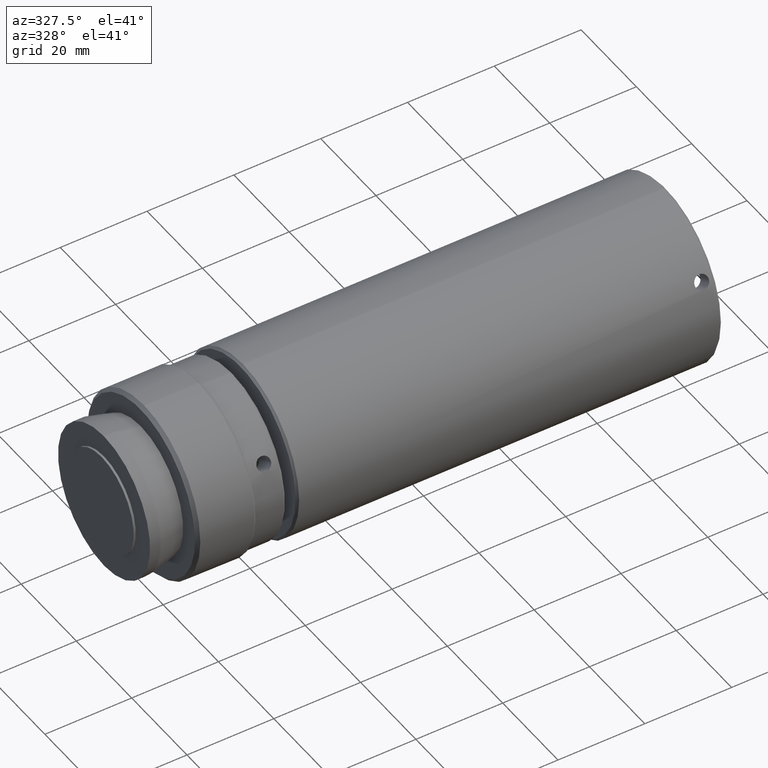
[diagram: clean part render]
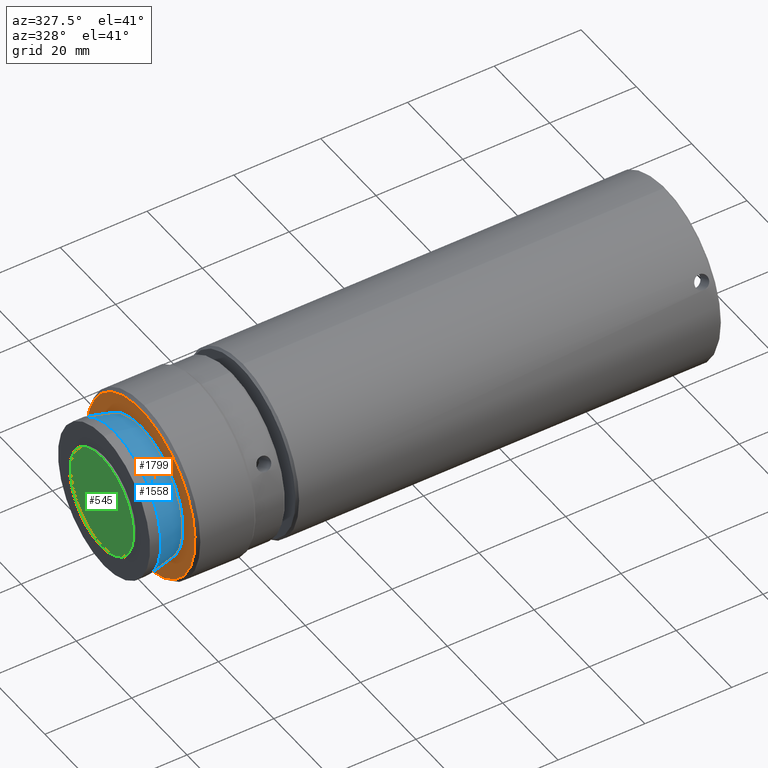
[diagram: same view with three faces highlighted in distinct colors, each labeled with its STEP entity id]
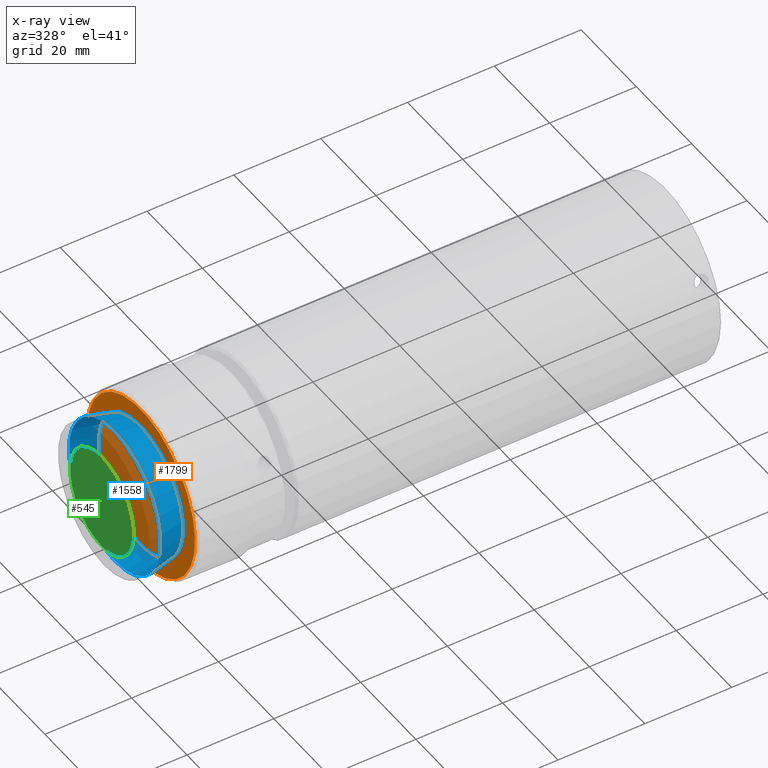
[diagram: x-ray of the same camera — body ghosted, the three highlighted faces saturated]
A machine part, auxiliary view with three faces highlighted in distinct colors.
The next image is the same camera in x-ray (body ghosted, the three faces saturated) — at least one of them is partly hidden behind the body in this view.
Their STEP definitions:

[orange] entity #1799 — the highlighted planar face has unit normal (1, -0, 0).
#136 = VERTEX_POINT ( 'NONE', #820 ) ;
#144 = CARTESIAN_POINT ( 'NONE',  ( 1.439495422680916903, 50.30531704458957165, 106.9958967609388765 ) ) ;
#335 = DIRECTION ( 'NONE',  ( 0.000000000000000000, 0.000000000000000000, -1.000000000000000000 ) ) ;
#370 = AXIS2_PLACEMENT_3D ( 'NONE', #458, #1308, #1472 ) ;
#458 = CARTESIAN_POINT ( 'NONE',  ( 1.439495422680916903, 0.000000000000000000, 0.000000000000000000 ) ) ;
#820 = CARTESIAN_POINT ( 'NONE',  ( 1.439495422680916903, 50.30531704458957165, 87.44589676093886510 ) ) ;
#910 = CIRCLE ( 'NONE', #2178, 19.55000000000001137 ) ;
#978 = FACE_OUTER_BOUND ( 'NONE', #1165, .T. ) ;
#1018 = EDGE_CURVE ( 'NONE', #136, #136, #910, .T. ) ;
#1165 = EDGE_LOOP ( 'NONE', ( #1605 ) ) ;
#1308 = DIRECTION ( 'NONE',  ( 1.000000000000000000, -0.000000000000000000, 0.000000000000000000 ) ) ;
#1472 = DIRECTION ( 'NONE',  ( 0.000000000000000000, 0.000000000000000000, -1.000000000000000000 ) ) ;
#1492 = DIRECTION ( 'NONE',  ( 1.000000000000000000, 0.000000000000000000, 0.000000000000000000 ) ) ;
#1605 = ORIENTED_EDGE ( 'NONE', *, *, #1018, .F. ) ;
#1799 = ADVANCED_FACE ( 'NONE', ( #978 ), #1878, .F. ) ;
#1878 = PLANE ( 'NONE',  #370 ) ;
#2178 = AXIS2_PLACEMENT_3D ( 'NONE', #144, #1492, #335 ) ;

[blue] entity #1558 — the highlighted conical surface has half-angle 13 deg.
#128 = CARTESIAN_POINT ( 'NONE',  ( 1.439495422680917791, 50.30531704458957165, 122.2606876141854571 ) ) ;
#351 = FACE_BOUND ( 'NONE', #899, .T. ) ;
#444 = VERTEX_POINT ( 'NONE', #1131 ) ;
#606 = CIRCLE ( 'NONE', #829, 16.64999999999999858 ) ;
#701 = DIRECTION ( 'NONE',  ( 2.604689903869079782E-16, 0.000000000000000000, 1.000000000000000000 ) ) ;
#710 = FACE_OUTER_BOUND ( 'NONE', #1288, .T. ) ;
#751 = CARTESIAN_POINT ( 'NONE',  ( -4.560504577319102637, 50.30531704458957165, 106.9958967609388765 ) ) ;
#829 = AXIS2_PLACEMENT_3D ( 'NONE', #751, #1025, #701 ) ;
#899 = EDGE_LOOP ( 'NONE', ( #1996 ) ) ;
#907 = CONICAL_SURFACE ( 'NONE', #2174, 16.64999999999999858, 0.2268928027592658492 ) ;
#1025 = DIRECTION ( 'NONE',  ( 1.000000000000000000, -0.000000000000000000, -0.000000000000000000 ) ) ;
#1049 = DIRECTION ( 'NONE',  ( -1.000000000000000000, 0.000000000000000000, 0.000000000000000000 ) ) ;
#1112 = CIRCLE ( 'NONE', #1339, 15.26479085324658413 ) ;
#1131 = CARTESIAN_POINT ( 'NONE',  ( -4.560504577319098196, 50.30531704458957165, 123.6458967609388679 ) ) ;
#1136 = VERTEX_POINT ( 'NONE', #128 ) ;
#1288 = EDGE_LOOP ( 'NONE', ( #1365 ) ) ;
#1323 = EDGE_CURVE ( 'NONE', #444, #444, #606, .T. ) ;
#1339 = AXIS2_PLACEMENT_3D ( 'NONE', #2208, #1343, #2050 ) ;
#1343 = DIRECTION ( 'NONE',  ( -1.000000000000000000, 0.000000000000000000, 0.000000000000000000 ) ) ;
#1365 = ORIENTED_EDGE ( 'NONE', *, *, #1323, .T. ) ;
#1558 = ADVANCED_FACE ( 'NONE', ( #710, #351 ), #907, .T. ) ;
#1574 = DIRECTION ( 'NONE',  ( 0.000000000000000000, 0.000000000000000000, 1.000000000000000000 ) ) ;
#1748 = CARTESIAN_POINT ( 'NONE',  ( -4.560504577319098196, 50.30531704458957165, 106.9958967609388765 ) ) ;
#1778 = EDGE_CURVE ( 'NONE', #1136, #1136, #1112, .T. ) ;
#1996 = ORIENTED_EDGE ( 'NONE', *, *, #1778, .T. ) ;
#2050 = DIRECTION ( 'NONE',  ( 5.682106923881823598E-17, 0.000000000000000000, 1.000000000000000000 ) ) ;
#2174 = AXIS2_PLACEMENT_3D ( 'NONE', #1748, #1049, #1574 ) ;
#2208 = CARTESIAN_POINT ( 'NONE',  ( 1.439495422680916903, 50.30531704458957165, 106.9958967609388765 ) ) ;

[green] entity #545 — the highlighted planar face has unit normal (1, -0, 0).
#270 = FACE_OUTER_BOUND ( 'NONE', #1173, .T. ) ;
#282 = PLANE ( 'NONE',  #1704 ) ;
#286 = AXIS2_PLACEMENT_3D ( 'NONE', #425, #1256, #417 ) ;
#417 = DIRECTION ( 'NONE',  ( 0.000000000000000000, 0.000000000000000000, -1.000000000000000000 ) ) ;
#425 = CARTESIAN_POINT ( 'NONE',  ( -7.560504577319091091, 50.30531704458957165, 106.9958967609388765 ) ) ;
#545 = ADVANCED_FACE ( 'NONE', ( #270 ), #282, .F. ) ;
#825 = VERTEX_POINT ( 'NONE', #1490 ) ;
#954 = DIRECTION ( 'NONE',  ( 0.000000000000000000, 0.000000000000000000, -1.000000000000000000 ) ) ;
#1133 = DIRECTION ( 'NONE',  ( 1.000000000000000000, -0.000000000000000000, 0.000000000000000000 ) ) ;
#1173 = EDGE_LOOP ( 'NONE', ( #1340 ) ) ;
#1256 = DIRECTION ( 'NONE',  ( 1.000000000000000000, 0.000000000000000000, 0.000000000000000000 ) ) ;
#1340 = ORIENTED_EDGE ( 'NONE', *, *, #2078, .F. ) ;
#1490 = CARTESIAN_POINT ( 'NONE',  ( -7.560504577319091091, 50.30531704458957165, 95.49589676093887647 ) ) ;
#1704 = AXIS2_PLACEMENT_3D ( 'NONE', #2029, #1133, #954 ) ;
#1742 = CIRCLE ( 'NONE', #286, 11.49999999999999645 ) ;
#2029 = CARTESIAN_POINT ( 'NONE',  ( -7.560504577319091091, 0.000000000000000000, 0.000000000000000000 ) ) ;
#2078 = EDGE_CURVE ( 'NONE', #825, #825, #1742, .T. ) ;